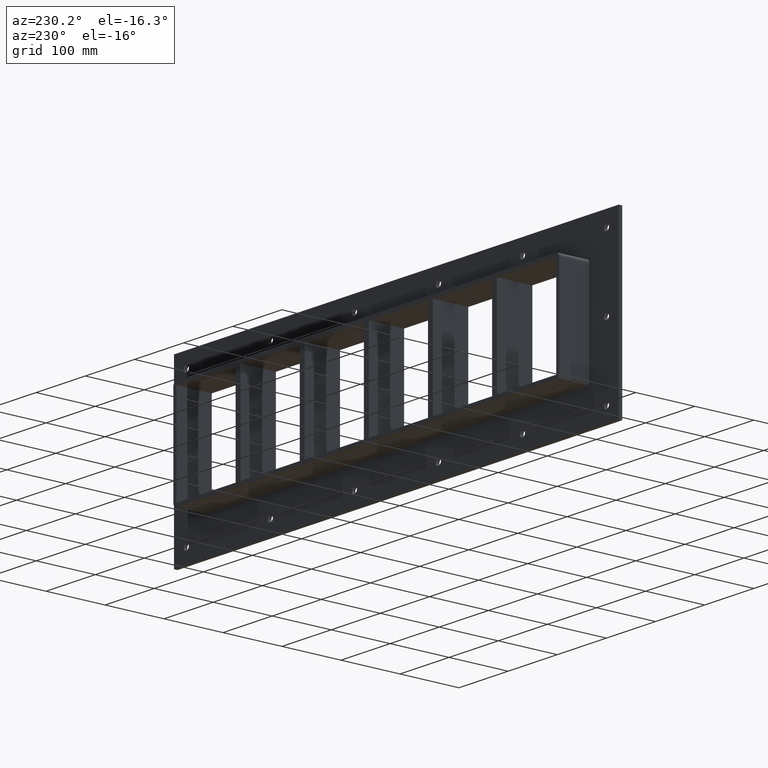
[diagram: clean part render]
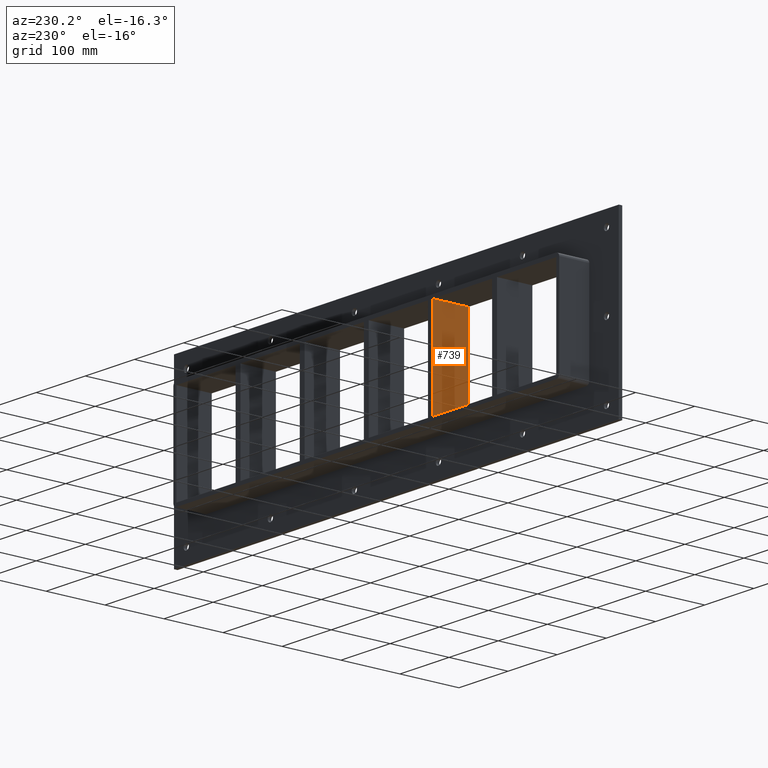
[diagram: same view with one face highlighted and labeled with its STEP entity id]
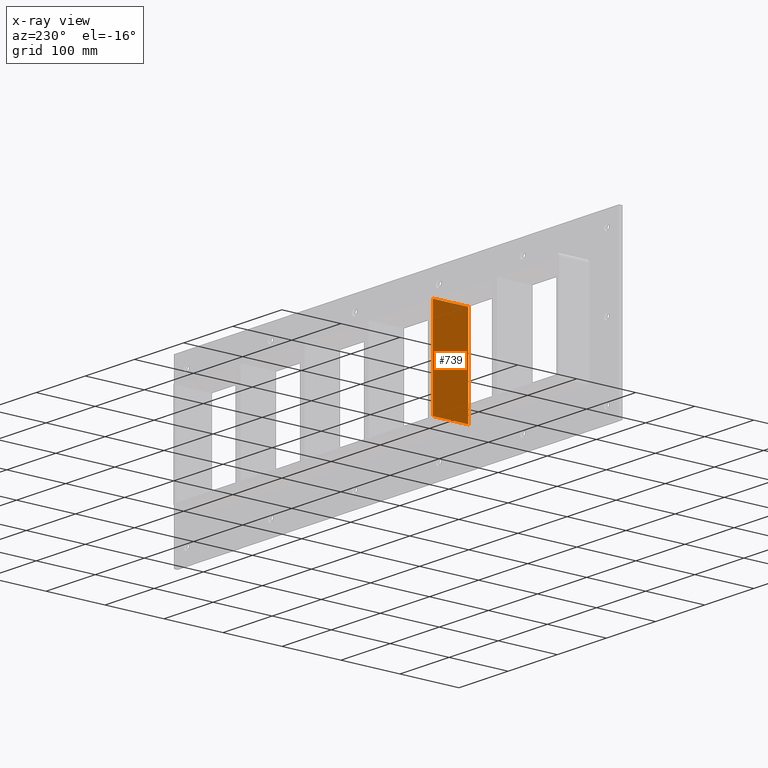
[diagram: x-ray of the same camera — body ghosted, the highlighted face saturated]
A machine part, auxiliary view. The second image highlights one B-rep face of the part: STEP entity #739.
The next image is the same camera in x-ray: the body ghosted, the highlighted face saturated — about 0% of this face is hidden behind the body in this view.
In plain terms, the highlighted planar face has unit normal (-1, 0, 0).
Its self-contained STEP definition (entity closure, byte-faithful):
#700=CARTESIAN_POINT('',(-135.50000000000193,-3.0,-79.750000000000014));
#701=DIRECTION('',(-1.0,0.0,0.0));
#702=DIRECTION('',(0.0,0.0,1.0));
#703=AXIS2_PLACEMENT_3D('',#700,#701,#702);
#704=PLANE('',#703);
#705=CARTESIAN_POINT('',(-135.50000000000193,-3.0,-79.750000000000014));
#706=VERTEX_POINT('',#705);
#707=CARTESIAN_POINT('',(-135.50000000000207,-3.0,79.750000000000014));
#708=VERTEX_POINT('',#707);
#709=CARTESIAN_POINT('',(-135.50000000000193,-3.0,-79.750000000000014));
#710=DIRECTION('',(0.0,0.0,1.0));
#711=VECTOR('',#710,159.50000000000003);
#712=LINE('',#709,#711);
#713=EDGE_CURVE('',#706,#708,#712,.T.);
#714=ORIENTED_EDGE('',*,*,#713,.T.);
#715=CARTESIAN_POINT('',(-135.50000000000207,57.0,79.750000000000014));
#716=VERTEX_POINT('',#715);
#717=CARTESIAN_POINT('',(-135.50000000000207,57.000000000000007,79.750000000000014));
#718=DIRECTION('',(0.0,-1.0,0.0));
#719=VECTOR('',#718,60.000000000000007);
#720=LINE('',#717,#719);
#721=EDGE_CURVE('',#716,#708,#720,.T.);
#722=ORIENTED_EDGE('',*,*,#721,.F.);
#723=CARTESIAN_POINT('',(-135.50000000000193,57.0,-79.750000000000014));
#724=VERTEX_POINT('',#723);
#725=CARTESIAN_POINT('',(-135.50000000000193,57.0,-79.750000000000014));
#726=DIRECTION('',(0.0,0.0,1.0));
#727=VECTOR('',#726,159.50000000000003);
#728=LINE('',#725,#727);
#729=EDGE_CURVE('',#724,#716,#728,.T.);
#730=ORIENTED_EDGE('',*,*,#729,.F.);
#731=CARTESIAN_POINT('',(-135.50000000000193,-3.0,-79.750000000000014));
#732=DIRECTION('',(0.0,1.0,0.0));
#733=VECTOR('',#732,60.000000000000007);
#734=LINE('',#731,#733);
#735=EDGE_CURVE('',#706,#724,#734,.T.);
#736=ORIENTED_EDGE('',*,*,#735,.F.);
#737=EDGE_LOOP('',(#714,#722,#730,#736));
#738=FACE_OUTER_BOUND('',#737,.T.);
#739=ADVANCED_FACE('',(#738),#704,.T.);